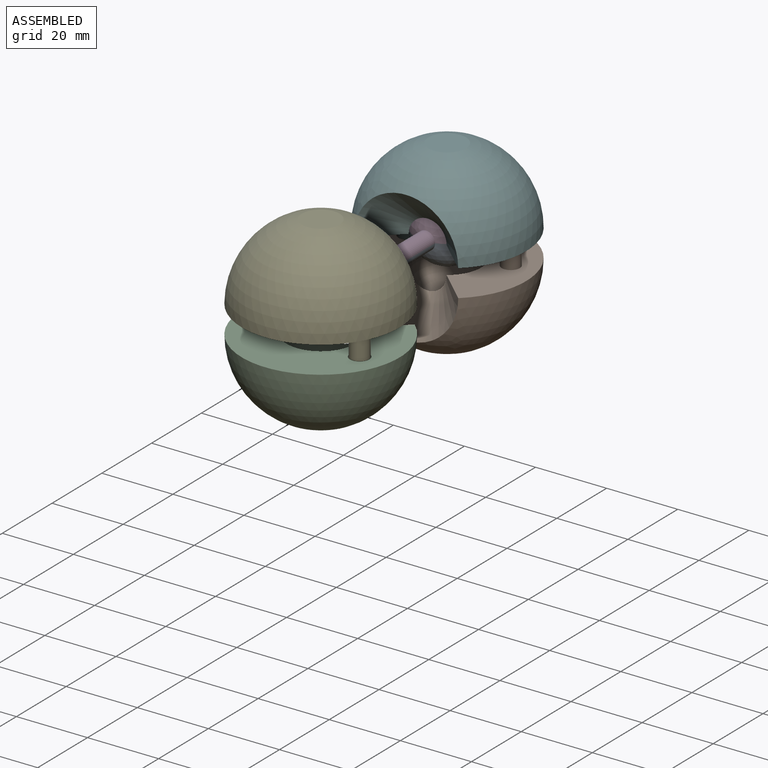
[diagram: assembled view]
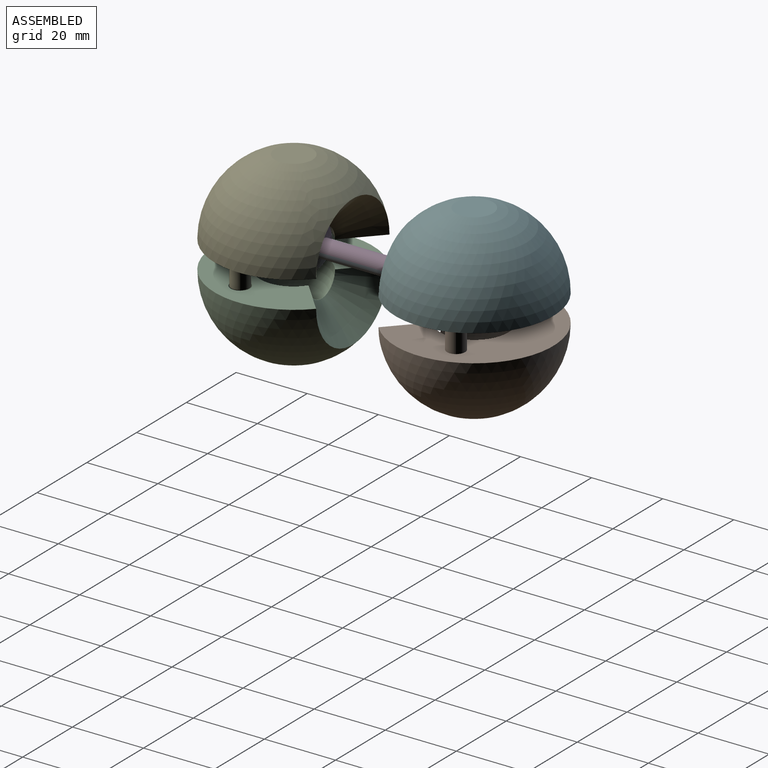
[diagram: assembled view, second angle]
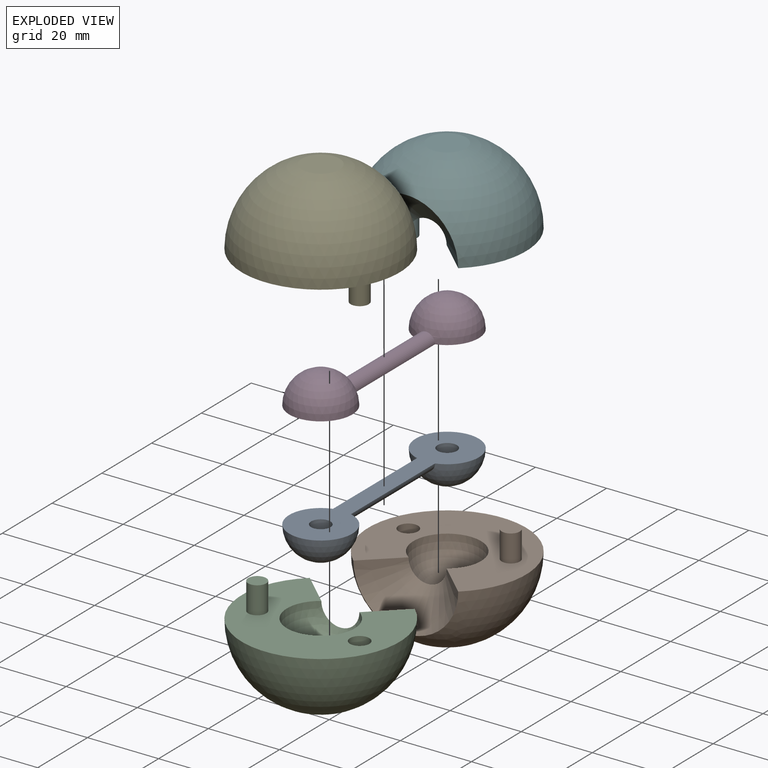
[diagram: exploded view]
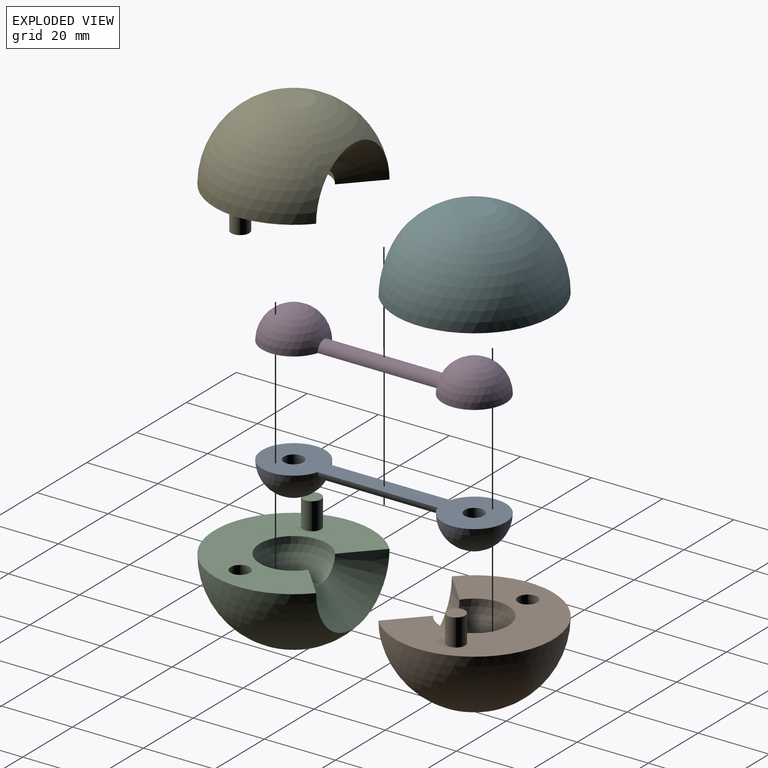
[diagram: exploded view, second angle]
ASSEMBLY  parts=6 mates=5
PART A: 10 faces, bbox 68.6x17.8x8.9 mm
  f0: cylinder r=2.54mm len=33.76mm, axis (-1,0,0), area 269.4mm2, adj f1,f2,f3
  f1: sphere r=8.89mm, area 486.2mm2, adj f0,f3
  f2: sphere r=8.89mm, area 486.2mm2, adj f0,f3
  f3: plane 68.58x17.78mm, normal (0,0,-1), area 618.7mm2, adj f0,f1,f2,f4,f6
  f4: cylinder r=2.73mm len=5.46mm, axis (0,0,-1), area 87.2mm2, adj f3,f8
  f5: plane 2.92x2.92mm, normal (0,0,-1), area 6.7mm2, adj f8
  f6: cylinder r=2.73mm len=5.46mm, axis (0,0,-1), area 87.2mm2, adj f3,f9
  f7: plane 2.92x2.92mm, normal (0,0,-1), area 6.7mm2, adj f9
  f8: torus R=1.46mm, axis (0,0,-1), area 28.4mm2, adj f4,f5
  f9: torus R=1.46mm, axis (0,0,-1), area 28.4mm2, adj f6,f7
PART B: 10 faces, bbox 44.5x44.5x29.2 mm
  f0: sphere r=22.23mm, area 2624.3mm2, adj f1,f3,f9
  f1: cone r=5.08mm half-angle=47deg, axis (0,-1,0), area 405.2mm2, adj f0,f2,f3
  f2: sphere r=9.53mm, area 520.7mm2, adj f1,f3
  f3: plane 44.45x38.86mm, normal (0,0,1), area 946.1mm2, adj f0,f1,f2,f4,f7
  f4: cylinder r=2.73mm len=6.73mm, axis (0,0,1), area 115.5mm2, adj f3,f6
  f5: plane 2.92x2.92mm, normal (0,0,1), area 6.7mm2, adj f6
  f6: torus R=1.46mm, axis (0,0,1), area 28.4mm2, adj f4,f5
  f7: cylinder r=2.54mm len=7.62mm, axis (0,0,1), area 121.6mm2, adj f3,f8
  f8: plane 5.08x5.08mm, normal (0,0,1), area 20.3mm2, adj f7
  f9: plane 10.55x10.55mm, normal (0,0,-1), area 87.4mm2, adj f0
PART C: same geometry as B
PART D: same geometry as A
PART E: same geometry as B
PART F: same geometry as B
PLACE A rot(axis=(0.71,-0.71,0),180deg) t=(-1.71,-15.55,4.82)mm
PLACE B t=(-1.71,9.85,-24.39)mm
PLACE C rot(axis=(0,0,1),180deg) t=(-1.71,-40.95,-24.39)mm
PLACE D rot(axis=(0,0,1),90deg) t=(-1.71,-15.55,4.82)mm
PLACE E rot(axis=(1,0,0),180deg) t=(-1.71,-40.95,26.41)mm
PLACE F rot(axis=(0,1,0),180deg) t=(-1.71,9.85,26.41)mm
MATE ball F.f3 <-> D.f4  axis (0,0,-1) through (-1.71,9.85,4.82)mm
MATE pin_slot B.f7 <-> F.f6  axis (0,0,1) through (12.7,14.8,4.82)mm
MATE fastened A.f6 <-> D.f4  axis (0,0,1) through (-1.71,9.85,4.82)mm
MATE ball E.f3 <-> D.f6  axis (0,0,-1) through (-1.71,-40.95,4.82)mm
MATE pin_slot C.f7 <-> E.f6  axis (0,0,1) through (-16.12,-45.91,4.82)mm
